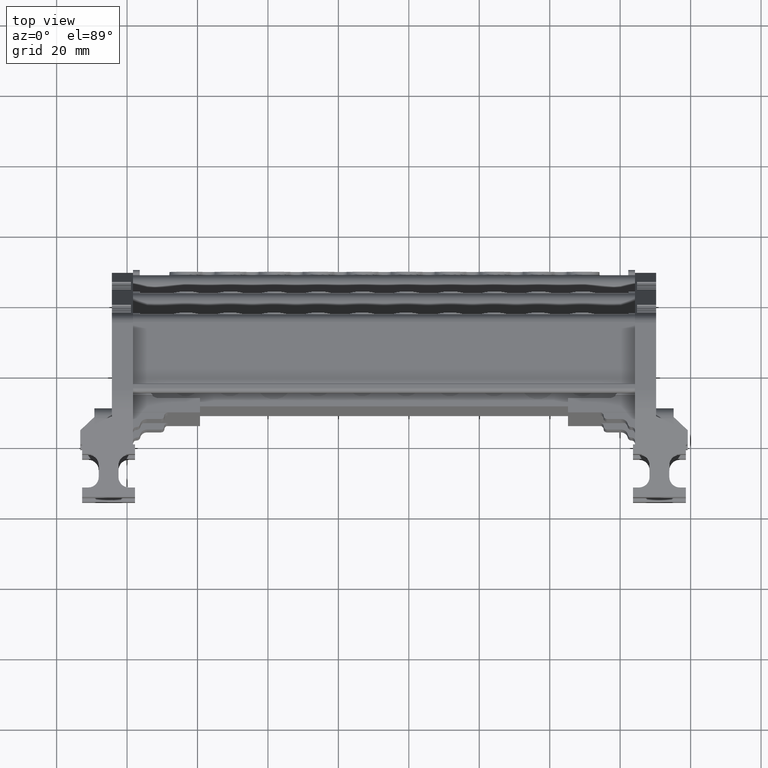
[diagram: clean part render]
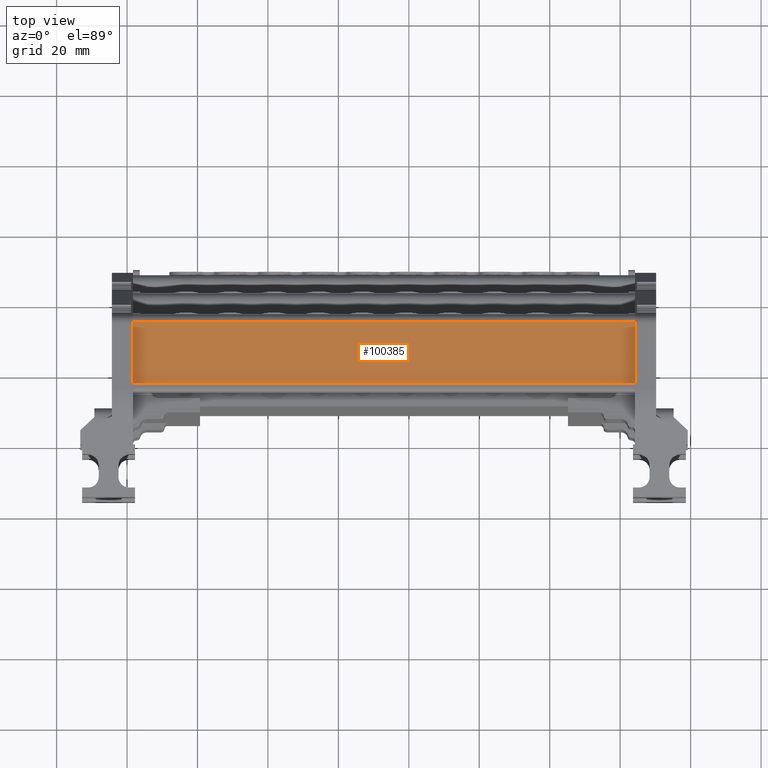
[diagram: same view with one face highlighted and labeled with its STEP entity id]
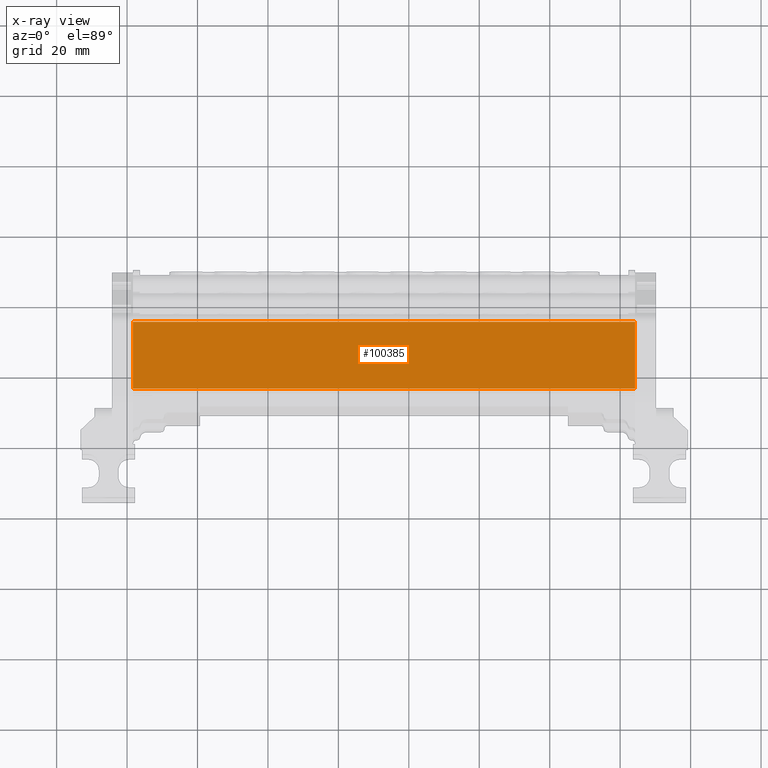
[diagram: x-ray of the same camera — body ghosted, the highlighted face saturated]
A machine part, top view. The second image highlights one B-rep face of the part: STEP entity #100385.
The next image is the same camera in x-ray: the body ghosted, the highlighted face saturated — about 0% of this face is hidden behind the body in this view.
In plain terms, the highlighted planar face has unit normal (-0, 0.2756, 0.9613).
Its self-contained STEP definition (entity closure, byte-faithful):
#7376 = EDGE_CURVE ( 'NONE', #9299, #110816, #114960, .T. ) ;
#8125 = EDGE_CURVE ( 'NONE', #110816, #110993, #31060, .T. ) ;
#8210 = EDGE_CURVE ( 'NONE', #110993, #11299, #31122, .T. ) ;
#9299 = VERTEX_POINT ( 'NONE', #78349 ) ;
#11299 = VERTEX_POINT ( 'NONE', #85667 ) ;
#21837 = LINE ( 'NONE', #21872, #33083 ) ;
#21839 = DIRECTION ( 'NONE',  ( 1.000000000000000000, 8.534381555384433800E-016, 2.976299410596451400E-015 ) ) ;
#21872 = CARTESIAN_POINT ( 'NONE',  ( 12.17005696747470200, 255.3211592928731800, 45.46924692647157000 ) ) ;
#31060 = LINE ( 'NONE', #31086, #40151 ) ;
#31085 = DIRECTION ( 'NONE',  ( -1.000000000000000000, -8.534381555384433800E-016, -2.976299410596451400E-015 ) ) ;
#31086 = CARTESIAN_POINT ( 'NONE',  ( 12.17005696747470200, 274.4429748293653700, 39.98616719198349800 ) ) ;
#31122 = LINE ( 'NONE', #31125, #40228 ) ;
#31125 = CARTESIAN_POINT ( 'NONE',  ( -98.30194303252668000, 266.4027413734810400, 42.29166172195493100 ) ) ;
#31136 = DIRECTION ( 'NONE',  ( 0.0000000000000000000, -0.9612618642707737600, 0.2756367687712879500 ) ) ;
#33083 = VECTOR ( 'NONE', #21839, 1000.000000000000000 ) ;
#39963 = VECTOR ( 'NONE', #114993, 1000.000000000000100 ) ;
#40151 = VECTOR ( 'NONE', #31085, 1000.000000000000000 ) ;
#40228 = VECTOR ( 'NONE', #31136, 1000.000000000000100 ) ;
#40385 = FACE_OUTER_BOUND ( 'NONE', #42166, .T. ) ;
#40390 = DIRECTION ( 'NONE',  ( -3.096242055596694800E-015, 0.2756367687712880100, 0.9612618642707738700 ) ) ;
#40396 = DIRECTION ( 'NONE',  ( 0.0000000000000000000, -0.9612618642707737600, 0.2756367687712879500 ) ) ;
#40406 = PLANE ( 'NONE',  #55990 ) ;
#40408 = CARTESIAN_POINT ( 'NONE',  ( 12.17005696747470200, 266.4027413734811500, 42.29166172195525100 ) ) ;
#42166 = EDGE_LOOP ( 'NONE', ( #49830, #50016, #49959, #49962 ) ) ;
#49830 = ORIENTED_EDGE ( 'NONE', *, *, #8125, .T. ) ;
#49959 = ORIENTED_EDGE ( 'NONE', *, *, #101022, .T. ) ;
#49962 = ORIENTED_EDGE ( 'NONE', *, *, #7376, .T. ) ;
#50016 = ORIENTED_EDGE ( 'NONE', *, *, #8210, .T. ) ;
#55990 = AXIS2_PLACEMENT_3D ( 'NONE', #40408, #40390, #40396 ) ;
#78349 = CARTESIAN_POINT ( 'NONE',  ( 44.19805696747480500, 255.3211592928725800, 45.46924692647184700 ) ) ;
#80972 = CARTESIAN_POINT ( 'NONE',  ( -98.30194303252665100, 274.4429748293659400, 39.98616719198297200 ) ) ;
#83490 = CARTESIAN_POINT ( 'NONE',  ( 44.19805696747480500, 274.4429748293653700, 39.98616719198358300 ) ) ;
#85667 = CARTESIAN_POINT ( 'NONE',  ( -98.30194303252660900, 255.3211592928731500, 45.46924692647123600 ) ) ;
#100385 = ADVANCED_FACE ( 'NONE', ( #40385 ), #40406, .T. ) ;
#101022 = EDGE_CURVE ( 'NONE', #11299, #9299, #21837, .T. ) ;
#110816 = VERTEX_POINT ( 'NONE', #83490 ) ;
#110993 = VERTEX_POINT ( 'NONE', #80972 ) ;
#114960 = LINE ( 'NONE', #114980, #39963 ) ;
#114980 = CARTESIAN_POINT ( 'NONE',  ( 44.19805696747482000, 266.4027413734811500, 42.29166172195535000 ) ) ;
#114993 = DIRECTION ( 'NONE',  ( -0.0000000000000000000, 0.9612618642707737600, -0.2756367687712879500 ) ) ;